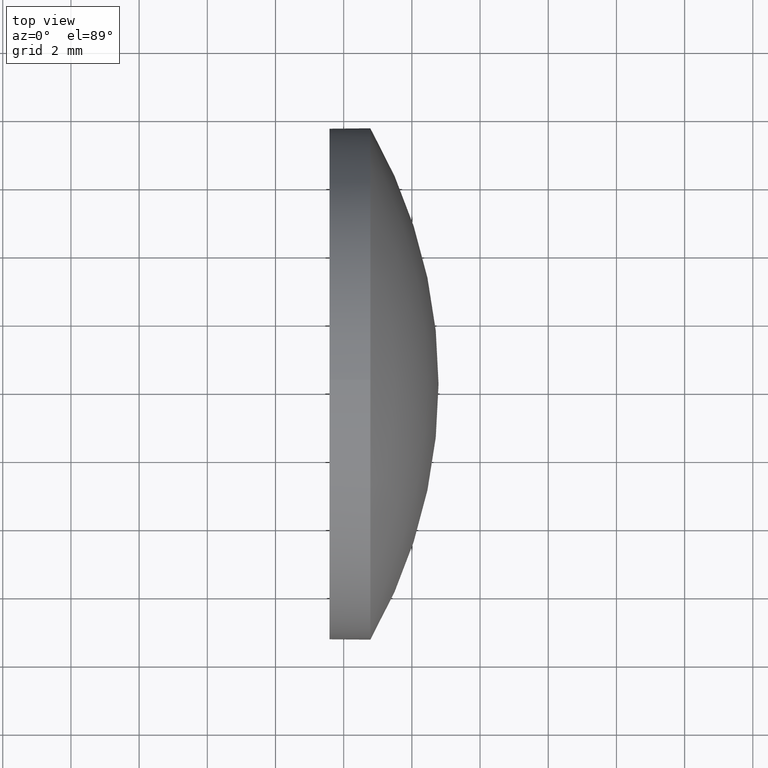
[diagram: clean part render]
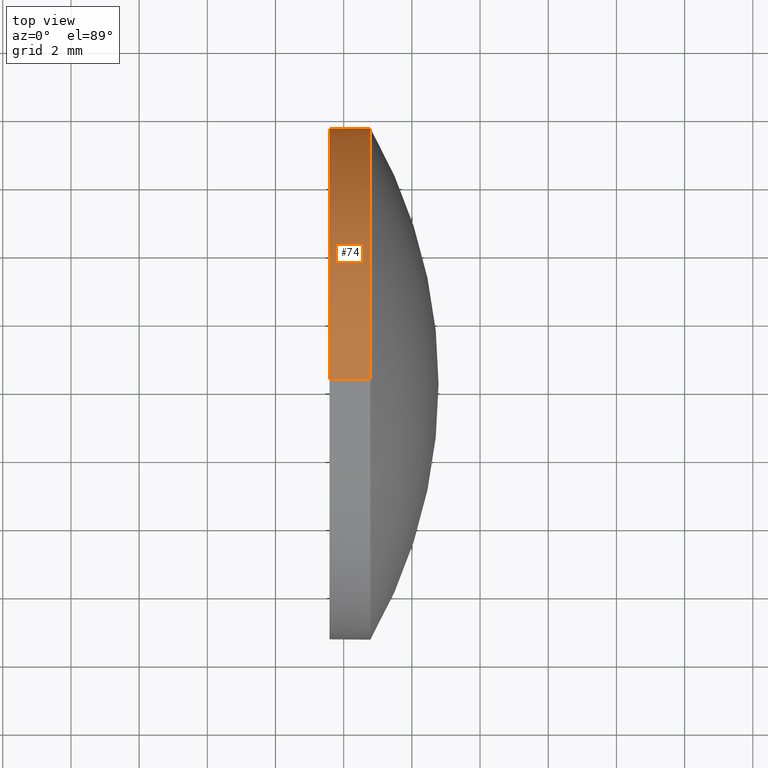
[diagram: same view with one face highlighted and labeled with its STEP entity id]
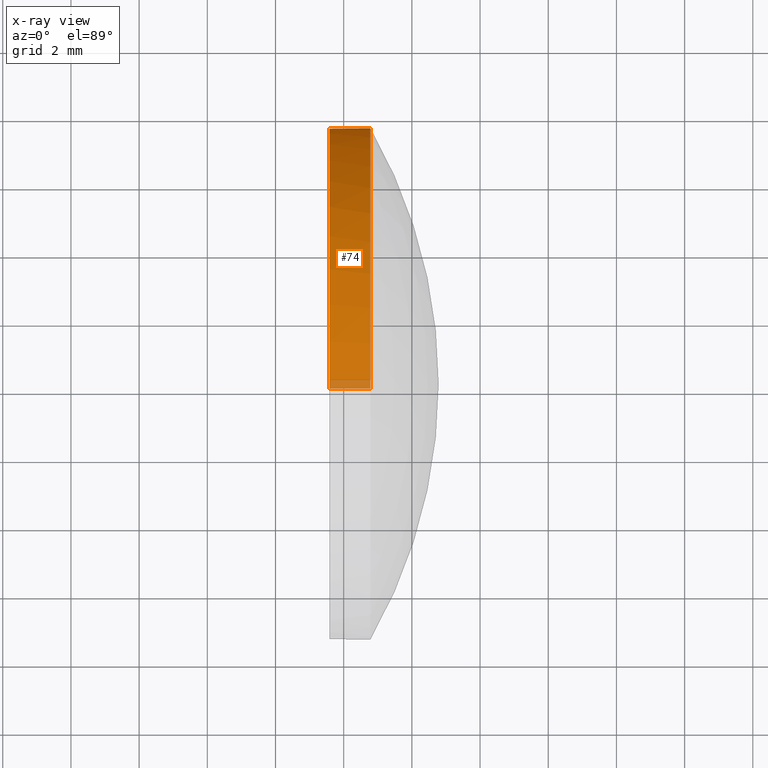
[diagram: x-ray of the same camera — body ghosted, the highlighted face saturated]
A machine part, top view. The second image highlights one B-rep face of the part: STEP entity #74.
The next image is the same camera in x-ray: the body ghosted, the highlighted face saturated — about 3% of this face is hidden behind the body in this view.
In plain terms, the highlighted cylindrical surface (partial cylindrical patch) has radius 7.5 mm, axis along (-1, -0, -0).
Its self-contained STEP definition (entity closure, byte-faithful):
#5 = AXIS2_PLACEMENT_3D ( 'NONE', #172, #118, #174 ) ;
#8 = ORIENTED_EDGE ( 'NONE', *, *, #181, .F. ) ;
#11 = DIRECTION ( 'NONE',  ( 0.0000000000000000000, 0.0000000000000000000, 1.000000000000000000 ) ) ;
#12 = CIRCLE ( 'NONE', #170, 7.500000000000007100 ) ;
#15 = DIRECTION ( 'NONE',  ( 0.0000000000000000000, 0.0000000000000000000, 1.000000000000000000 ) ) ;
#18 = VERTEX_POINT ( 'NONE', #121 ) ;
#19 = LINE ( 'NONE', #143, #169 ) ;
#21 = VECTOR ( 'NONE', #61, 1000.000000000000000 ) ;
#33 = VERTEX_POINT ( 'NONE', #79 ) ;
#40 = DIRECTION ( 'NONE',  ( -1.000000000000000000, -0.0000000000000000000, -0.0000000000000000000 ) ) ;
#44 = EDGE_CURVE ( 'NONE', #102, #88, #19, .T. ) ;
#46 = LINE ( 'NONE', #116, #21 ) ;
#47 = ORIENTED_EDGE ( 'NONE', *, *, #44, .F. ) ;
#58 = AXIS2_PLACEMENT_3D ( 'NONE', #122, #133, #63 ) ;
#61 = DIRECTION ( 'NONE',  ( -1.000000000000000000, -0.0000000000000000000, -0.0000000000000000000 ) ) ;
#63 = DIRECTION ( 'NONE',  ( 0.0000000000000000000, 0.0000000000000000000, 1.000000000000000000 ) ) ;
#74 = ADVANCED_FACE ( 'NONE', ( #168 ), #158, .T. ) ;
#77 = EDGE_CURVE ( 'NONE', #102, #33, #12, .T. ) ;
#79 = CARTESIAN_POINT ( 'NONE',  ( 466.7821324568757900, 65.66787172714012400, 9.184850993605132200E-016 ) ) ;
#84 = CARTESIAN_POINT ( 'NONE',  ( 466.7821324568757900, 58.16787172714012400, 0.0000000000000000000 ) ) ;
#87 = EDGE_CURVE ( 'NONE', #33, #18, #165, .T. ) ;
#88 = VERTEX_POINT ( 'NONE', #132 ) ;
#95 = ORIENTED_EDGE ( 'NONE', *, *, #87, .T. ) ;
#100 = CIRCLE ( 'NONE', #5, 7.500000000000007100 ) ;
#102 = VERTEX_POINT ( 'NONE', #157 ) ;
#112 = EDGE_CURVE ( 'NONE', #18, #166, #46, .T. ) ;
#115 = ORIENTED_EDGE ( 'NONE', *, *, #112, .T. ) ;
#116 = CARTESIAN_POINT ( 'NONE',  ( 462.7413203261423300, 58.16787172714012400, -7.500000000000007100 ) ) ;
#118 = DIRECTION ( 'NONE',  ( -1.000000000000000000, -0.0000000000000000000, -0.0000000000000000000 ) ) ;
#121 = CARTESIAN_POINT ( 'NONE',  ( 466.7821324568757900, 58.16787172714012400, -7.500000000000007100 ) ) ;
#122 = CARTESIAN_POINT ( 'NONE',  ( 462.7413203261423300, 58.16787172714012400, 0.0000000000000000000 ) ) ;
#131 = CARTESIAN_POINT ( 'NONE',  ( 465.5821324568758000, 58.16787172714012400, -7.500000000000007100 ) ) ;
#132 = CARTESIAN_POINT ( 'NONE',  ( 465.5821324568758000, 58.16787172714012400, 7.500000000000007100 ) ) ;
#133 = DIRECTION ( 'NONE',  ( -1.000000000000000000, -0.0000000000000000000, -0.0000000000000000000 ) ) ;
#136 = DIRECTION ( 'NONE',  ( -1.000000000000000000, -0.0000000000000000000, -0.0000000000000000000 ) ) ;
#143 = CARTESIAN_POINT ( 'NONE',  ( 462.7413203261423300, 58.16787172714012400, 7.500000000000007100 ) ) ;
#145 = AXIS2_PLACEMENT_3D ( 'NONE', #171, #40, #11 ) ;
#151 = ORIENTED_EDGE ( 'NONE', *, *, #77, .T. ) ;
#157 = CARTESIAN_POINT ( 'NONE',  ( 466.7821324568757900, 58.16787172714012400, 7.500000000000007100 ) ) ;
#158 = CYLINDRICAL_SURFACE ( 'NONE', #58, 7.500000000000007100 ) ;
#163 = DIRECTION ( 'NONE',  ( -1.000000000000000000, -0.0000000000000000000, -0.0000000000000000000 ) ) ;
#165 = CIRCLE ( 'NONE', #145, 7.500000000000007100 ) ;
#166 = VERTEX_POINT ( 'NONE', #131 ) ;
#168 = FACE_OUTER_BOUND ( 'NONE', #180, .T. ) ;
#169 = VECTOR ( 'NONE', #163, 1000.000000000000000 ) ;
#170 = AXIS2_PLACEMENT_3D ( 'NONE', #84, #136, #15 ) ;
#171 = CARTESIAN_POINT ( 'NONE',  ( 466.7821324568757900, 58.16787172714012400, 0.0000000000000000000 ) ) ;
#172 = CARTESIAN_POINT ( 'NONE',  ( 465.5821324568758000, 58.16787172714012400, 0.0000000000000000000 ) ) ;
#174 = DIRECTION ( 'NONE',  ( 0.0000000000000000000, 0.0000000000000000000, 1.000000000000000000 ) ) ;
#180 = EDGE_LOOP ( 'NONE', ( #95, #115, #8, #47, #151 ) ) ;
#181 = EDGE_CURVE ( 'NONE', #88, #166, #100, .T. ) ;